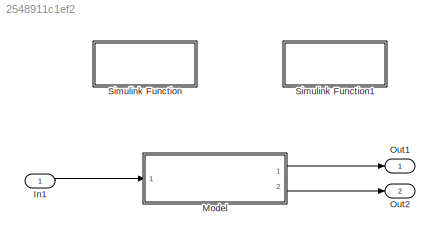
MODEL slx_2548911c1ef2
KIND model
CONFIG AbsTol = auto
CONFIG EnableMultiTasking = off
CONFIG FixedStep = auto
CONFIG MaxStep = auto
CONFIG MinStep = auto
CONFIG RelTol = 1e-3
CONFIG SampleTimeConstraint = Unconstrained
CONFIG Solver = VariableStepAuto
CONFIG SolverName = VariableStepAuto
CONFIG StartTime = 0.0
CONFIG StopTime = 10.0
BLOCK [Inport] In1
  IconDisplay = Port number
BLOCK [ModelReference] Model
  ModelNameDialog = RefModel1.slx
  ModelReferenceVersion = 1.17
  Ports = [1, 2]
BLOCK [Outport] Out1
  IconDisplay = Port number
BLOCK [Outport] Out2
  IconDisplay = Port number
  Port = 2
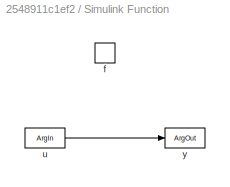
BLOCK [SubSystem] Simulink Function
  Ports = [0, 0, 0, 1]
  RequestExecContextInheritance = off
  TreatAsAtomicUnit = on
BLOCK [TriggerPort] Simulink Function/f
  FunctionName = f
  FunctionVisibility = scoped
  IsSimulinkFunction = on
  Ports = []
  StatesWhenEnabling = held
  TriggerType = function-call
  VariantControl = (inherit)
BLOCK [ArgIn] Simulink Function/u
  ArgumentName = u
  DisableCoverage = on
BLOCK [ArgOut] Simulink Function/y
  ArgumentName = y
  DisableCoverage = on
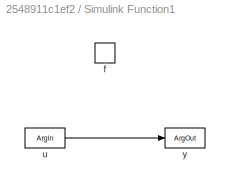
BLOCK [SubSystem] Simulink Function1
  Ports = [0, 0, 0, 1]
  RequestExecContextInheritance = off
  TreatAsAtomicUnit = on
BLOCK [TriggerPort] Simulink Function1/f
  FunctionName = fnew
  FunctionVisibility = scoped
  IsSimulinkFunction = on
  Ports = []
  StatesWhenEnabling = held
  TriggerType = function-call
  VariantControl = (inherit)
BLOCK [ArgIn] Simulink Function1/u
  ArgumentName = u
  DisableCoverage = on
BLOCK [ArgOut] Simulink Function1/y
  ArgumentName = y
  DisableCoverage = on
LINE In1:1 -> Model:1
LINE Model:1 -> Out1:1
LINE Model:2 -> Out2:1
LINE Simulink Function/u:1 -> Simulink Function/y:1
LINE Simulink Function1/u:1 -> Simulink Function1/y:1
